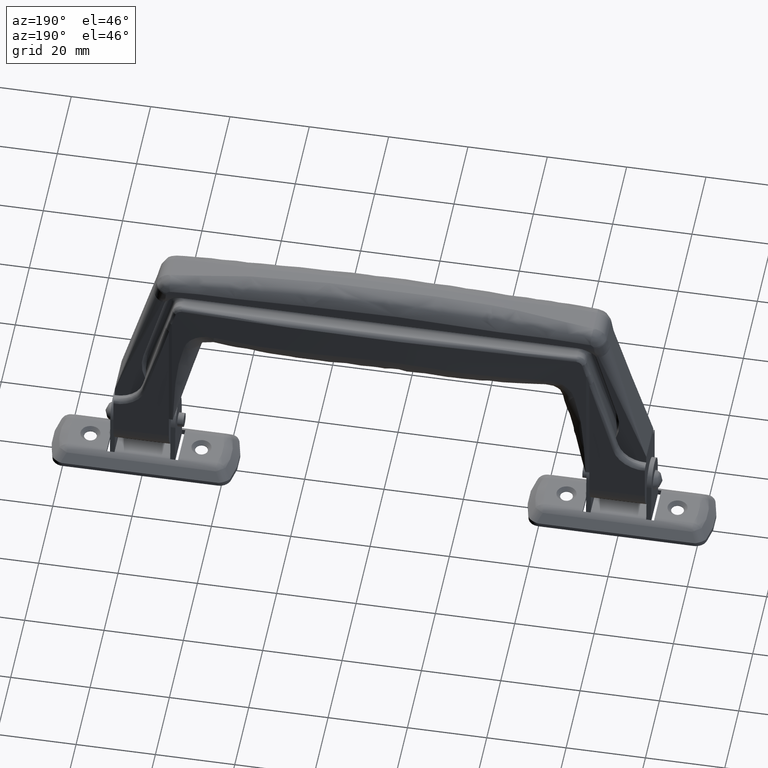
[diagram: clean part render]
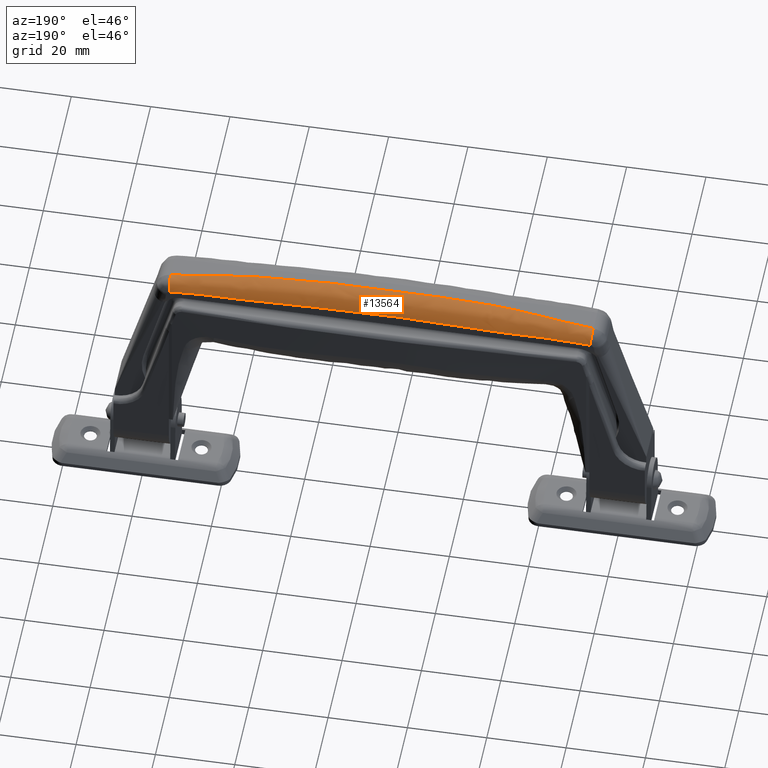
[diagram: same view with one face highlighted and labeled with its STEP entity id]
A machine part, auxiliary view. The second image highlights one B-rep face of the part: STEP entity #13564.
In plain terms, the highlighted face is a freeform B-spline surface patch.
Its self-contained STEP definition (entity closure, byte-faithful):
#13382=CARTESIAN_POINT('',(52.948040140643513,5.750000000000000,64.171534029697995));
#13383=VERTEX_POINT('',#13382);
#13384=CARTESIAN_POINT('',(53.267646016743903,2.750000000000000,67.154460794464796));
#13385=VERTEX_POINT('',#13384);
#13386=CARTESIAN_POINT('',(52.948040140643513,5.750000000000000,64.171534029697995));
#13387=CARTESIAN_POINT('',(53.267646016743917,5.749999999999995,67.154460794464640));
#13388=CARTESIAN_POINT('',(53.267646016743903,2.750000000000000,67.154460794464697));
#13396=(BOUNDED_CURVE()B_SPLINE_CURVE(2,(#13386,#13387,#13388),.UNSPECIFIED.,.F.,.U.)CURVE()GEOMETRIC_REPRESENTATION_ITEM()QUASI_UNIFORM_CURVE()RATIONAL_B_SPLINE_CURVE((1.0,0.707106781186552,1.0))REPRESENTATION_ITEM(''));
#13397=EDGE_CURVE('',#13383,#13385,#13396,.T.);
#13420=CARTESIAN_POINT('',(-53.474834907937208,5.749999999999891,64.092694670111030));
#13421=CARTESIAN_POINT('',(-53.476026620202489,5.749999999999946,64.103747414958576));
#13422=CARTESIAN_POINT('',(-53.798819596787602,5.750000000014807,67.097547607122536));
#13423=CARTESIAN_POINT('',(-53.798819596789045,2.738340933937169,67.097547607142033));
#13424=CARTESIAN_POINT('',(-53.798819596789038,2.726719344427205,67.097547607142090));
#13425=CARTESIAN_POINT('',(-44.491500819602571,5.750000000001923,65.125951301699033));
#13426=CARTESIAN_POINT('',(-44.492557212061890,5.750000000000962,65.136793081356160));
#13427=CARTESIAN_POINT('',(-44.778697582100257,5.749999999741320,68.073467666971851));
#13428=CARTESIAN_POINT('',(-44.778697891431420,2.799139125448988,68.073469934274925));
#13429=CARTESIAN_POINT('',(-44.778697892561070,2.787752216041364,68.073469942391341));
#13430=CARTESIAN_POINT('',(-35.408058942597719,5.749999999999614,64.281529090483957));
#13431=CARTESIAN_POINT('',(-35.409250614238388,5.749999999999807,64.298164263332310));
#13432=CARTESIAN_POINT('',(-35.732032620869703,5.750000000045630,68.804051623978026));
#13433=CARTESIAN_POINT('',(-35.732032697419278,1.232531122868418,68.804067806860090));
#13434=CARTESIAN_POINT('',(-35.732032697622927,1.215098829131792,68.804067869320107));
#13435=CARTESIAN_POINT('',(-8.827021631426600,5.750000000000466,65.701694170991914));
#13436=CARTESIAN_POINT('',(-8.827318722816838,5.750000000000233,65.718377679805300));
#13437=CARTESIAN_POINT('',(-8.907789924762012,5.749999999972426,70.237335086604844));
#13438=CARTESIAN_POINT('',(-8.907789382427231,1.232501916087398,70.237257013427026));
#13439=CARTESIAN_POINT('',(-8.907789380781818,1.215069419482424,70.237256712152387));
#13440=CARTESIAN_POINT('',(8.826504133659480,5.749999999999687,65.701703386452479));
#13441=CARTESIAN_POINT('',(8.826801203036821,5.749999999999846,65.718386895575790));
#13442=CARTESIAN_POINT('',(8.907266900339577,5.750000000069687,70.237344386359936));
#13443=CARTESIAN_POINT('',(8.907267142775122,1.232501916086991,70.237266312779184));
#13444=CARTESIAN_POINT('',(8.907267143263228,1.215069419481609,70.237266011503010));
#13445=CARTESIAN_POINT('',(35.407542917052233,5.750000000000079,64.281566055546875));
#13446=CARTESIAN_POINT('',(35.408734572280189,5.750000000000038,64.298201229639503));
#13447=CARTESIAN_POINT('',(35.731512038046695,5.749999999982860,68.804088927317380));
#13448=CARTESIAN_POINT('',(35.731511951370933,1.232531122868663,68.804105110410717));
#13449=CARTESIAN_POINT('',(35.731511951130827,1.215098829132279,68.804105172871544));
#13450=CARTESIAN_POINT('',(44.490983913386557,5.750000000001815,65.125997750185817));
#13451=CARTESIAN_POINT('',(44.492040294491467,5.750000000000908,65.136839530944968));
#13452=CARTESIAN_POINT('',(44.778177592774647,5.749999999755874,68.073514415056351));
#13453=CARTESIAN_POINT('',(44.778177908581121,2.799139125445144,68.073516682437941));
#13454=CARTESIAN_POINT('',(44.778177909728399,2.787752216037449,68.073516690554627));
#13455=CARTESIAN_POINT('',(53.474319080961280,5.749999999999896,64.092750496933974));
#13456=CARTESIAN_POINT('',(53.475510781687476,5.749999999999949,64.103803243025681));
#13457=CARTESIAN_POINT('',(53.798300632748202,5.750000000014112,67.097603772193352));
#13458=CARTESIAN_POINT('',(53.798300632748472,2.738340933937173,67.097603772207876));
#13459=CARTESIAN_POINT('',(53.798300632748493,2.726719344427210,67.097603772207933));
#13467=(BOUNDED_SURFACE()B_SPLINE_SURFACE(2,3,((#13420,#13425,#13430,#13435,#13440,#13445,#13450,#13455),(#13421,#13426,#13431,#13436,#13441,#13446,#13451,#13456),(#13422,#13427,#13432,#13437,#13442,#13447,#13452,#13457),(#13423,#13428,#13433,#13438,#13443,#13448,#13453,#13458),(#13424,#13429,#13434,#13439,#13444,#13449,#13454,#13459)),.UNSPECIFIED.,.F.,.F.,.U.)B_SPLINE_SURFACE_WITH_KNOTS((3,1,1,3),(4,2,2,4),(0.0,0.039253395409277,7.495102561789514,7.536146999452726),(0.0,27.297388231686249,80.821678905386193,108.119067137039290),.UNSPECIFIED.)GEOMETRIC_REPRESENTATION_ITEM()RATIONAL_B_SPLINE_SURFACE(((1.003084035922460,1.003084035922460,1.003084035922460,1.003084035922460,1.003084035922460,1.003084035922460,1.003084035922460,1.003084035922460),(1.001542017961230,1.001542017961230,1.001542017961230,1.001542017961230,1.001542017961230,1.001542017961230,1.001542017961230,1.001542017961230),(0.707106781186552,0.707106781186552,0.707106781186552,0.707106781186552,0.707106781186552,0.707106781186552,0.707106781186552,0.707106781186552),(1.001612376698254,1.001612376698254,1.001612376698254,1.001612376698254,1.001612376698254,1.001612376698254,1.001612376698254,1.001612376698254),(1.003224753396508,1.003224753396508,1.003224753396508,1.003224753396508,1.003224753396508,1.003224753396508,1.003224753396508,1.003224753396508)))REPRESENTATION_ITEM('')SURFACE());
#13468=CARTESIAN_POINT('',(-52.948556049868898,5.750000000000000,64.171478752299109));
#13469=VERTEX_POINT('',#13468);
#13470=CARTESIAN_POINT('',(-53.268165040109601,2.749999999999920,67.154405183399604));
#13471=VERTEX_POINT('',#13470);
#13472=CARTESIAN_POINT('',(-52.948556049868898,5.750000000000000,64.171478752299109));
#13473=CARTESIAN_POINT('',(-53.268165040109558,5.749999999999994,67.154405183399547));
#13474=CARTESIAN_POINT('',(-53.268165040109601,2.749999999999920,67.154405183399604));
#13482=(BOUNDED_CURVE()B_SPLINE_CURVE(2,(#13472,#13473,#13474),.UNSPECIFIED.,.F.,.U.)CURVE()GEOMETRIC_REPRESENTATION_ITEM()QUASI_UNIFORM_CURVE()RATIONAL_B_SPLINE_CURVE((1.0,0.707106781186539,1.0))REPRESENTATION_ITEM(''));
#13483=EDGE_CURVE('',#13469,#13471,#13482,.T.);
#13484=ORIENTED_EDGE('',*,*,#13483,.T.);
#13485=CARTESIAN_POINT('',(53.267646016743903,2.750000000000000,67.154460794464796));
#13486=CARTESIAN_POINT('',(52.864684142061861,2.748100919992244,67.197349028146462));
#13487=CARTESIAN_POINT('',(52.039020125643177,2.744209727983392,67.285226501187310));
#13488=CARTESIAN_POINT('',(50.770703990878637,2.714479911334355,67.416187087675070));
#13489=CARTESIAN_POINT('',(49.443108761079714,2.667587819142149,67.550008135270247));
#13490=CARTESIAN_POINT('',(48.056170943417747,2.601454270038076,67.685921585593434));
#13491=CARTESIAN_POINT('',(46.188749187208153,2.492499308988028,67.863579595714839));
#13492=CARTESIAN_POINT('',(43.491658402214647,2.292541113414373,68.108639962376799));
#13493=CARTESIAN_POINT('',(39.984390040281937,2.000023469202310,68.403745776344564));
#13494=CARTESIAN_POINT('',(36.474836874837372,1.707470816669366,68.671563814953203));
#13495=CARTESIAN_POINT('',(33.462578813112422,1.484581262303451,68.881234465125729));
#13496=CARTESIAN_POINT('',(31.003298467070319,1.349804643962255,69.039646925348222));
#13497=CARTESIAN_POINT('',(28.783145506376488,1.268219524576110,69.172375479657759));
#13498=CARTESIAN_POINT('',(26.802062772591789,1.246274330504888,69.282296383620931));
#13499=CARTESIAN_POINT('',(25.006157894403419,1.250893362758002,69.375228858761730));
#13500=CARTESIAN_POINT('',(23.340316405560941,1.249728874510555,69.455860728611754));
#13501=CARTESIAN_POINT('',(21.674218174749470,1.250026723894260,69.530935413995962));
#13502=CARTESIAN_POINT('',(20.007878006914432,1.249935222879572,69.600452353519856));
#13503=CARTESIAN_POINT('',(18.341315441854700,1.249950529778468,69.664410700346309));
#13504=CARTESIAN_POINT('',(16.674548753867889,1.249939699371228,69.722809762536272));
#13505=CARTESIAN_POINT('',(15.007596559263121,1.249938354225428,69.775648885069913));
#13506=CARTESIAN_POINT('',(13.340477385427681,1.249936949290482,69.822927481469193));
#13507=CARTESIAN_POINT('',(11.673209785809190,1.249938042200495,69.864645025330319));
#13508=CARTESIAN_POINT('',(10.005812309682851,1.249940947470962,69.900801052609253));
#13509=CARTESIAN_POINT('',(8.338303506861868,1.249945849404465,69.931395160983470));
#13510=CARTESIAN_POINT('',(6.670701937849516,1.249952696275848,69.956427010149710));
#13511=CARTESIAN_POINT('',(5.003026127281689,1.249961510683158,69.975896321299075));
#13512=CARTESIAN_POINT('',(3.335294738767718,1.249972253958690,69.989802878940651));
#13513=CARTESIAN_POINT('',(1.667525920844302,1.249985058176551,69.998146524151082));
#13514=CARTESIAN_POINT('',(-0.926803927323337,1.250007420077156,70.002471981438234));
#13515=CARTESIAN_POINT('',(-4.447694730374462,1.250050918862121,69.986811159985265));
#13516=CARTESIAN_POINT('',(-8.894773283259857,1.250009132838512,69.927471046768090));
#13517=CARTESIAN_POINT('',(-13.341150644660789,1.250246599928549,69.828577615215295));
#13518=CARTESIAN_POINT('',(-17.786470874482099,1.249380273859119,69.690138763361844));
#13519=CARTESIAN_POINT('',(-22.230387747201299,1.252566354779741,69.512165130528814));
#13520=CARTESIAN_POINT('',(-25.596476500549660,1.243470733679576,69.347357049766586));
#13521=CARTESIAN_POINT('',(-27.905703814803690,1.255973793450360,69.221182068998345));
#13522=CARTESIAN_POINT('',(-29.178543947591521,1.285444195554005,69.148454856687465));
#13523=CARTESIAN_POINT('',(-30.510491104944119,1.332413498586865,69.068863172022887));
#13524=CARTESIAN_POINT('',(-31.901500878314799,1.398539069393201,68.981933271311618));
#13525=CARTESIAN_POINT('',(-33.773489413428479,1.507513605715453,68.859593802733755));
#13526=CARTESIAN_POINT('',(-36.475247982116102,1.707472815681651,68.671532922475336));
#13527=CARTESIAN_POINT('',(-39.984692640730763,2.000014822748604,68.403726329598996));
#13528=CARTESIAN_POINT('',(-43.492067310118372,2.292488135319841,68.108588517136695));
#13529=CARTESIAN_POINT('',(-46.499230821342543,2.515579449316705,67.835406121742650));
#13530=CARTESIAN_POINT('',(-48.952306231083988,2.649758123403831,67.599560584413069));
#13531=CARTESIAN_POINT('',(-51.165284941793459,2.733292528196337,67.377176131894444));
#13532=CARTESIAN_POINT('',(-52.585515471475453,2.744576320148272,67.226722426791525));
#13533=CARTESIAN_POINT('',(-53.268165040109601,2.749999999999920,67.154405183399604));
#13534=B_SPLINE_CURVE_WITH_KNOTS('',3,(#13485,#13486,#13487,#13488,#13489,#13490,#13491,#13492,#13493,#13494,#13495,#13496,#13497,#13498,#13499,#13500,#13501,#13502,#13503,#13504,#13505,#13506,#13507,#13508,#13509,#13510,#13511,#13512,#13513,#13514,#13515,#13516,#13517,#13518,#13519,#13520,#13521,#13522,#13523,#13524,#13525,#13526,#13527,#13528,#13529,#13530,#13531,#13532,#13533),.UNSPECIFIED.,.F.,.U.,(4,1,1,1,1,1,1,1,1,1,1,1,1,1,1,1,1,1,1,1,1,1,1,1,1,1,1,1,1,1,1,1,1,1,1,1,1,1,1,1,1,1,1,1,1,1,4),(0.0,0.011378885227034,0.023315198457206,0.035811175443084,0.048868764452075,0.062489672755779,0.088572266872741,0.125117856516262,0.161660752323663,0.187746042763648,0.210132817222528,0.230959435324377,0.250234949954287,0.265845287540663,0.281455625126886,0.297065962712980,0.312676300298965,0.328286637884868,0.343896975470701,0.359507313056492,0.375117650642266,0.390727988228038,0.406338325813829,0.421948663399665,0.437559000985561,0.453169338571548,0.468779676157640,0.484390013743863,0.500000351330234,0.541627800295099,0.583255249259153,0.624882698222797,0.666510147186441,0.708137596150495,0.749765045115363,0.761141264241868,0.773076243790051,0.785572221234138,0.798631145685436,0.812254724629321,0.838336929006890,0.874882911095373,0.911425414197482,0.937511094637126,0.959897829071388,0.980724446409567,1.0),.UNSPECIFIED.);
#13535=EDGE_CURVE('',#13385,#13471,#13534,.T.);
#13536=ORIENTED_EDGE('',*,*,#13535,.F.);
#13537=ORIENTED_EDGE('',*,*,#13397,.F.);
#13538=CARTESIAN_POINT('',(-52.948556049868898,5.750000000000000,64.171478752299109));
#13539=CARTESIAN_POINT('',(-49.947542525029597,5.750000000000000,64.492981371103909));
#13540=CARTESIAN_POINT('',(-46.326001339318907,5.750000000000000,64.600985862742789));
#13541=CARTESIAN_POINT('',(-43.687129307113352,5.750000000000000,64.679684410605006));
#13542=CARTESIAN_POINT('',(-39.687033363415502,5.750000000000000,64.660692711938395));
#13543=CARTESIAN_POINT('',(-33.354244297086900,5.750000000000000,64.630625827703696));
#13544=CARTESIAN_POINT('',(-33.049722494406453,5.750000000000000,64.631546577569097));
#13545=CARTESIAN_POINT('',(-29.269197736254750,5.750000000000000,64.642977344206898));
#13546=CARTESIAN_POINT('',(-26.432139104539299,5.750000000000000,64.794494737318601));
#13547=CARTESIAN_POINT('',(-13.222662067636641,5.750000000000000,65.499966771849586));
#13548=CARTESIAN_POINT('',(-0.000258648078622,5.750000000000000,65.499999999932598));
#13549=CARTESIAN_POINT('',(13.223319901023901,5.750000000000000,65.500033230968697));
#13550=CARTESIAN_POINT('',(26.431622544906599,5.750000000000000,64.794522331890505));
#13551=CARTESIAN_POINT('',(29.267540527175150,5.750000000000000,64.643044045896701));
#13552=CARTESIAN_POINT('',(33.049206105112297,5.750000000000000,64.631581080730285));
#13553=CARTESIAN_POINT('',(33.356637380183052,5.750000000000000,64.630649196637208));
#13554=CARTESIAN_POINT('',(39.686516943528247,5.750000000000000,64.660734144418399));
#13555=CARTESIAN_POINT('',(43.684879129848852,5.750000000000000,64.679737747311904));
#13556=CARTESIAN_POINT('',(46.325484981567499,5.750000000000000,64.601034226294402));
#13557=CARTESIAN_POINT('',(49.946246316034298,5.750000000000000,64.493117073266404));
#13558=CARTESIAN_POINT('',(52.948040140643513,5.750000000000000,64.171534029697995));
#13559=B_SPLINE_CURVE_WITH_KNOTS('',2,(#13538,#13539,#13540,#13541,#13542,#13543,#13544,#13545,#13546,#13547,#13548,#13549,#13550,#13551,#13552,#13553,#13554,#13555,#13556,#13557,#13558),.UNSPECIFIED.,.F.,.U.,(3,2,2,2,2,2,2,2,2,2,3),(0.0,0.062500000000000,0.125000000000000,0.187500000000000,0.250000000000000,0.500000000000000,0.750000000000000,0.812500000000000,0.875000000000000,0.937500000000000,1.0),.UNSPECIFIED.);
#13560=EDGE_CURVE('',#13469,#13383,#13559,.T.);
#13561=ORIENTED_EDGE('',*,*,#13560,.F.);
#13562=EDGE_LOOP('',(#13484,#13536,#13537,#13561));
#13563=FACE_OUTER_BOUND('',#13562,.T.);
#13564=ADVANCED_FACE('',(#13563),#13467,.T.);